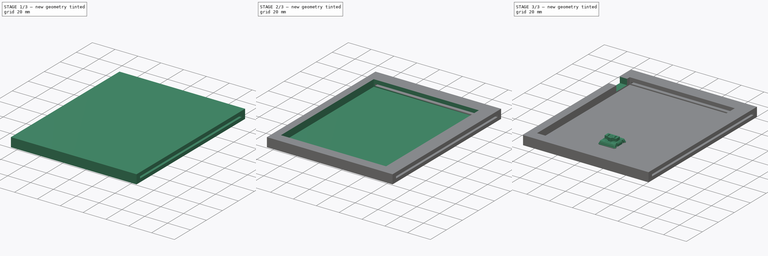
[diagram: build sequence overview — one tinted view per stage of 3, left to right]
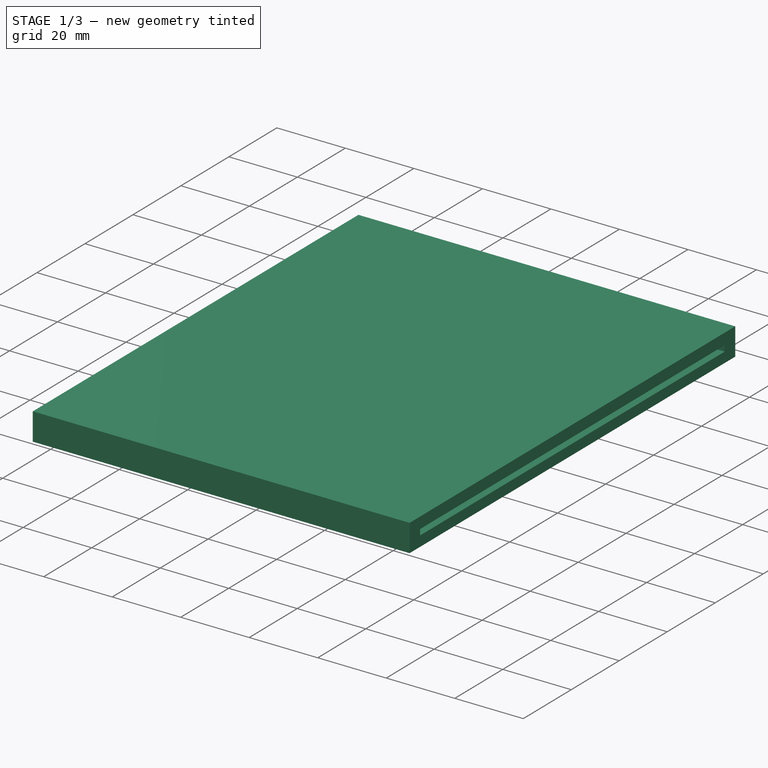
[diagram: stage 1 of 3 — iso view after this stage's code; geometry added in this stage tinted green]
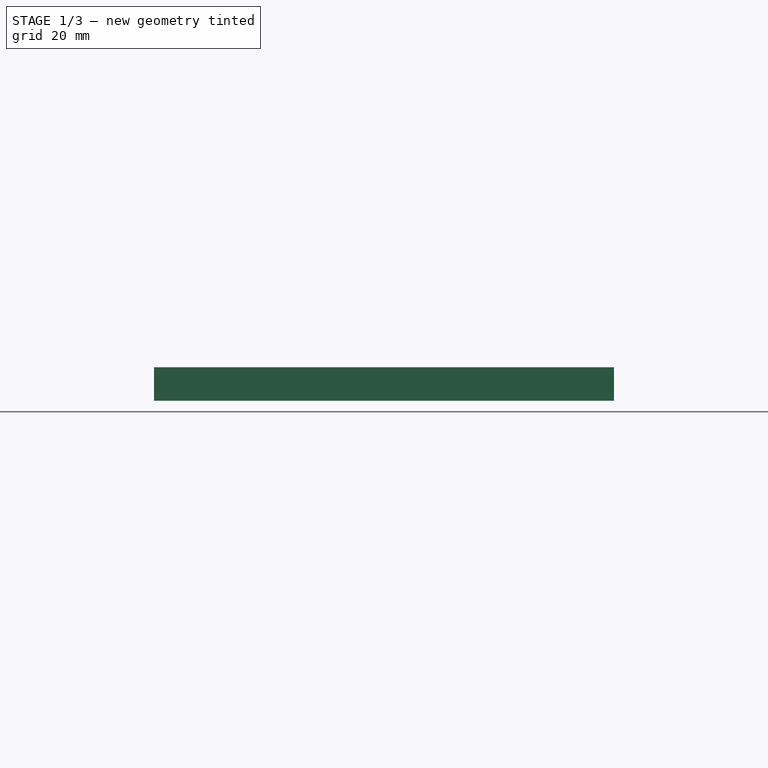
[diagram: stage 1 of 3 — front view after this stage's code; geometry added in this stage tinted green]
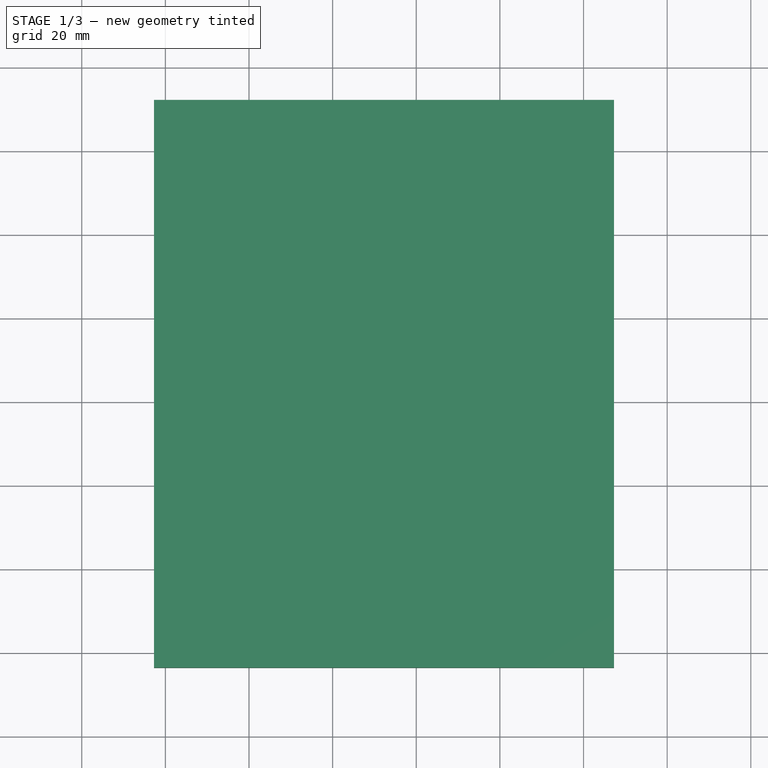
[diagram: stage 1 of 3 — top view after this stage's code; geometry added in this stage tinted green]
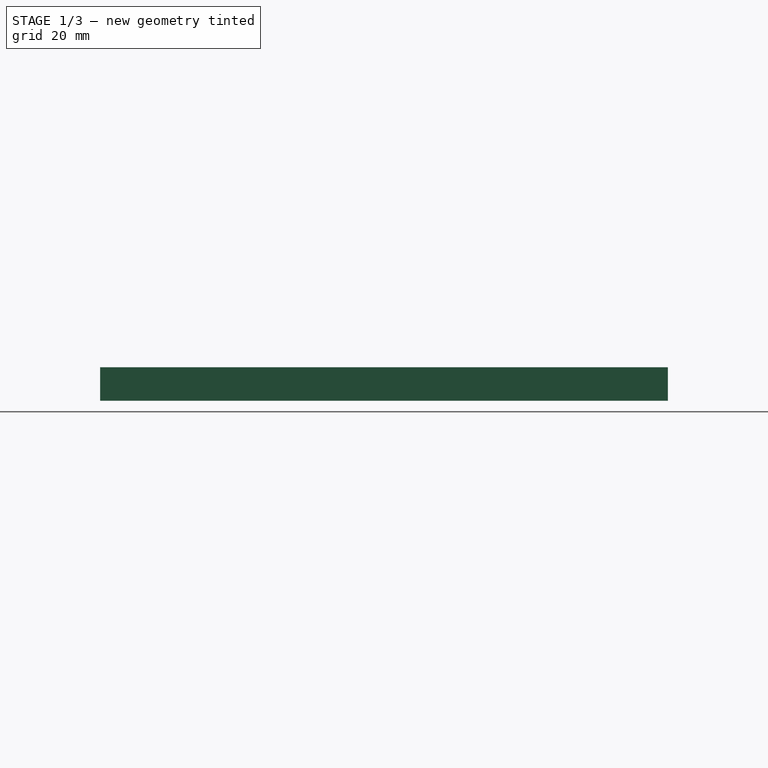
[diagram: stage 1 of 3 — right view after this stage's code; geometry added in this stage tinted green]
FCSTD DOCUMENT  (FreeCAD 0.19R24366 (Git))
Label: Macropad-Body
License: All rights reserved
LicenseURL: http://en.wikipedia.org/wiki/All_rights_reserved
objects: App::Link×24, Part::Feature×10, Sketcher::SketchObject×5, App::Part×4, PartDesign::Pocket×3, PartDesign::CoordinateSystem×1, Part::Compound2×1, PartDesign::Pad×1, PartDesign::Body×1
note: 25 computed .brp shape members not serialized (recipe doc carries the construction recipe); baked Part::Feature solids carry a one-line shape summary decoded from their .brp

FEATURE [App::Link] SW14_Document_2853d20ba206_ln_  label="SW18_Document_3f2459f904bc"
  LinkPlacement = pos=(108.338,-109.212,2) rot=(0,0,1;0rad)
  LinkedObject = -> Compound
  Placement = pos=(108.338,-109.212,2) rot=(0,0,1;0rad)
FEATURE [App::Link] SW14_Document_2853d20ba206_ln_001  label="SW20_Document_5184012de5fe"
  LinkPlacement = pos=(108.338,-145.612,2) rot=(0,0,1;0rad)
  LinkedObject = -> Compound
  Placement = pos=(108.338,-145.612,2) rot=(0,0,1;0rad)
FEATURE [App::Link] SW14_Document_2853d20ba206_ln_002  label="SW24_Document_49687321c8c3"
  LinkPlacement = pos=(126.538,-127.412,2) rot=(0,0,1;0rad)
  LinkedObject = -> Compound
  Placement = pos=(126.538,-127.412,2) rot=(0,0,1;0rad)
FEATURE [App::Link] SW14_Document_2853d20ba206_ln_003  label="SW5_Document_e620e6cf32ca"
  LinkPlacement = pos=(53.738,-145.612,2) rot=(0,0,1;0rad)
  LinkedObject = -> Compound
  Placement = pos=(53.738,-145.612,2) rot=(0,0,1;0rad)
FEATURE [App::Link] SW14_Document_2853d20ba206_ln_004  label="SW16_Document_e62f87efac60"
  LinkPlacement = pos=(108.338,-72.812,2) rot=(0,0,1;0rad)
  LinkedObject = -> Compound
  Placement = pos=(108.338,-72.812,2) rot=(0,0,1;0rad)
FEATURE [App::Link] SW14_Document_2853d20ba206_ln_005  label="SW25_Document_6bb74f2d1ac8"
  LinkPlacement = pos=(126.538,-145.612,2) rot=(0,0,1;0rad)
  LinkedObject = -> Compound
  Placement = pos=(126.538,-145.612,2) rot=(0,0,1;0rad)
FEATURE [App::Link] SW14_Document_2853d20ba206_ln_006  label="SW13_Document_20a67ae5f37a"
  LinkPlacement = pos=(90.138,-109.212,2) rot=(0,0,1;0rad)
  LinkedObject = -> Compound
  Placement = pos=(90.138,-109.212,2) rot=(0,0,1;0rad)
FEATURE [App::Link] SW14_Document_2853d20ba206_ln_007  label="SW9_Document_a8bebd084112"
  LinkPlacement = pos=(71.938,-127.412,2) rot=(0,0,1;0rad)
  LinkedObject = -> Compound
  Placement = pos=(71.938,-127.412,2) rot=(0,0,1;0rad)
FEATURE [App::Link] SW14_Document_2853d20ba206_ln_008  label="SW19_Document_7b6202ae578f"
  LinkPlacement = pos=(108.338,-127.412,2) rot=(0,0,1;0rad)
  LinkedObject = -> Compound
  Placement = pos=(108.338,-127.412,2) rot=(0,0,1;0rad)
FEATURE [App::Link] SW14_Document_2853d20ba206_ln_009  label="SW10_Document_03b2c68a05de"
  LinkPlacement = pos=(71.938,-145.612,2) rot=(0,0,1;0rad)
  LinkedObject = -> Compound
  Placement = pos=(71.938,-145.612,2) rot=(0,0,1;0rad)
FEATURE [App::Link] SW14_Document_2853d20ba206_ln_010  label="SW6_Document_54752b49123a"
  LinkPlacement = pos=(71.938,-72.812,2) rot=(0,0,1;0rad)
  LinkedObject = -> Compound
  Placement = pos=(71.938,-72.812,2) rot=(0,0,1;0rad)
FEATURE [App::Link] SW14_Document_2853d20ba206_ln_011  label="SW15_Document_e8960decdecc"
  LinkPlacement = pos=(90.138,-145.612,2) rot=(0,0,1;0rad)
  LinkedObject = -> Compound
  Placement = pos=(90.138,-145.612,2) rot=(0,0,1;0rad)
FEATURE [App::Link] SW14_Document_2853d20ba206_ln_012  label="SW7_Document_2b6421fbf4d7"
  LinkPlacement = pos=(71.938,-91.012,2) rot=(0,0,1;0rad)
  LinkedObject = -> Compound
  Placement = pos=(71.938,-91.012,2) rot=(0,0,1;0rad)
FEATURE [App::Link] SW14_Document_2853d20ba206_ln_013  label="SW11_Document_0afd5a4c94a8"
  LinkPlacement = pos=(90.138,-72.812,2) rot=(0,0,1;0rad)
  LinkedObject = -> Compound
  Placement = pos=(90.138,-72.812,2) rot=(0,0,1;0rad)
FEATURE [App::Link] SW14_Document_2853d20ba206_ln_014  label="SW3_Document_b792f1493e33"
  LinkPlacement = pos=(53.738,-109.212,2) rot=(0,0,1;0rad)
  LinkedObject = -> Compound
  Placement = pos=(53.738,-109.212,2) rot=(0,0,1;0rad)
FEATURE [App::Link] SW14_Document_2853d20ba206_ln_015  label="SW8_Document_85e8c02a8ba8"
  LinkPlacement = pos=(71.938,-109.212,2) rot=(0,0,1;0rad)
  LinkedObject = -> Compound
  Placement = pos=(71.938,-109.212,2) rot=(0,0,1;0rad)
FEATURE [App::Link] SW14_Document_2853d20ba206_ln_016  label="SW21_Document_d1286374ccfa"
  LinkPlacement = pos=(126.538,-72.812,2) rot=(0,0,1;0rad)
  LinkedObject = -> Compound
  Placement = pos=(126.538,-72.812,2) rot=(0,0,1;0rad)
FEATURE [App::Link] SW14_Document_2853d20ba206_ln_017  label="SW22_Document_9cc95cef6f41"
  LinkPlacement = pos=(126.538,-91.012,2) rot=(0,0,1;0rad)
  LinkedObject = -> Compound
  Placement = pos=(126.538,-91.012,2) rot=(0,0,1;0rad)
FEATURE [App::Link] SW14_Document_2853d20ba206_ln_018  label="SW2_Document_9691d7f0c1f2"
  LinkPlacement = pos=(53.738,-91.012,2) rot=(0,0,1;0rad)
  LinkedObject = -> Compound
  Placement = pos=(53.738,-91.012,2) rot=(0,0,1;0rad)
FEATURE [App::Link] SW14_Document_2853d20ba206_ln_019  label="SW23_Document_a87c25bd77f8"
  LinkPlacement = pos=(126.538,-109.212,2) rot=(0,0,1;0rad)
  LinkedObject = -> Compound
  Placement = pos=(126.538,-109.212,2) rot=(0,0,1;0rad)
FEATURE [App::Link] SW14_Document_2853d20ba206_ln_020  label="SW12_Document_93c31ae8dfb6"
  LinkPlacement = pos=(90.138,-91.012,2) rot=(0,0,1;0rad)
  LinkedObject = -> Compound
  Placement = pos=(90.138,-91.012,2) rot=(0,0,1;0rad)
FEATURE [App::Link] SW14_Document_2853d20ba206_ln_021  label="SW17_Document_374a33b9ad63"
  LinkPlacement = pos=(108.338,-91.012,2) rot=(0,0,1;0rad)
  LinkedObject = -> Compound
  Placement = pos=(108.338,-91.012,2) rot=(0,0,1;0rad)
FEATURE [App::Link] SW14_Document_2853d20ba206_ln_022  label="SW4_Document_aa552340458d"
  LinkPlacement = pos=(53.738,-127.412,2) rot=(0,0,1;0rad)
  LinkedObject = -> Compound
  Placement = pos=(53.738,-127.412,2) rot=(0,0,1;0rad)
FEATURE [App::Link] SW14_Document_2853d20ba206_ln_023  label="SW1_Document_5cf0fb6ca8e3"
  LinkPlacement = pos=(53.738,-72.812,2) rot=(0,0,1;0rad)
  LinkedObject = -> Compound
  Placement = pos=(53.738,-72.812,2) rot=(0,0,1;0rad)
FEATURE [App::Part] Top_223f
  Group = -> [Solid004,Solid,Solid003,Solid001,Solid002,Solid007,Solid008,Solid005,Solid006,Compound,SW14_Document_2853d20ba206_ln_,SW14_Document_2853d20ba206_ln_001,SW14_Document_2853d20ba206_ln_002,SW14_Document_2853d20ba206_ln_003,SW14_Document_2853d20ba206_ln_004,SW14_Document_2853d20ba206_ln_005,SW14_Document_2853d20ba206_ln_006,SW14_Document_2853d20ba206_ln_007,SW14_Document_2853d20ba206_ln_008,+15 more]
  Origin = -> Origin003
FEATURE [App::Part] Step_Models_223f
  Group = -> [Top_223f]
  Origin = -> Origin002
FEATURE [App::Part] Board_223f  label="Macropad"
  Group = -> [Board_Geoms_223f,Step_Models_223f]
  Origin = -> Origin001
  Placement = pos=(0,0,4.5) rot=(0,0,1;0rad)
FEATURE [Sketcher::SketchObject] Sketch
  FullyConstrained = false
  MapMode = 5
  Support = -> [XY_Plane004]
  sketch-geometry (4):
    g0: LineSegment StartX=37.2829 StartY=-27.7881 StartZ=0 EndX=147.283 EndY=-27.7881 EndZ=0
    g1: LineSegment StartX=147.283 StartY=-27.7881 StartZ=0 EndX=147.283 EndY=-163.538 EndZ=0
    g2: LineSegment StartX=147.283 StartY=-163.538 StartZ=0 EndX=37.2829 EndY=-163.538 EndZ=0
    g3: LineSegment StartX=37.2829 StartY=-163.538 StartZ=0 EndX=37.2829 EndY=-27.7881 EndZ=0
  constraints (10):
    c: Coincident(g0,g1)
    c: Coincident(g1,g2)
    c: Coincident(g2,g3)
    c: Coincident(g3,g0)
    c: Horizontal(g0)
    c: Horizontal(g2)
    c: Vertical(g1)
    c: Vertical(g3)
    c: DistanceX(g0,g0) = 110
    c: DistanceY(g1,g1) = 135.75
FEATURE [PartDesign::Pad] Pad
  Direction = (1,1,1)
  Length = 8
  Length2 = 100
  Profile = -> Sketch
  Type = 0
FEATURE [Sketcher::SketchObject] Sketch001
  ExternalGeometry = -> [Pad]
  FullyConstrained = true
  MapMode = 5
  Placement = pos=(147.283,0,0) rot=(0.57735,0.57735,0.57735;2.0944rad)
  Support = -> [Pad]
  sketch-geometry (4):
    g0: LineSegment StartX=-159.163 StartY=4.7 StartZ=0 EndX=-32.1631 EndY=4.7 EndZ=0
    g1: LineSegment StartX=-32.1631 StartY=4.7 StartZ=0 EndX=-32.1631 EndY=3 EndZ=0
    g2: LineSegment StartX=-32.1631 StartY=3 StartZ=0 EndX=-159.163 EndY=3 EndZ=0
    g3: LineSegment StartX=-159.163 StartY=3 StartZ=0 EndX=-159.163 EndY=4.7 EndZ=0
  constraints (12):
    c: Coincident(g0,g1)
    c: Coincident(g1,g2)
    c: Coincident(g2,g3)
    c: Coincident(g3,g0)
    c: Horizontal(g0)
    c: Horizontal(g2)
    c: Vertical(g1)
    c: Vertical(g3)
    c: DistanceY(g1,g1) = 1.7
    c: DistanceY(g-5,g1) = 3
    c: DistanceX(g0,g0) = 127
    c: DistanceX(g1,g-5) = 4.375
FEATURE [PartDesign::Pocket] Pocket
  BaseFeature = -> Pad
  Length = 102.5
  Length2 = 100
  Profile = -> Sketch001
  Type = 0
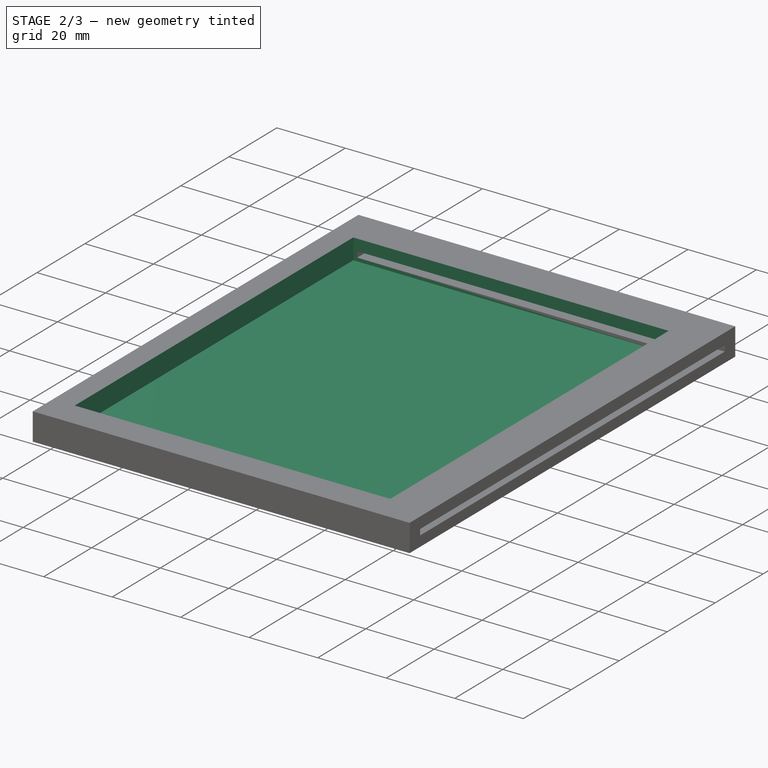
[diagram: stage 2 of 3 — iso view after this stage's code; geometry added in this stage tinted green]
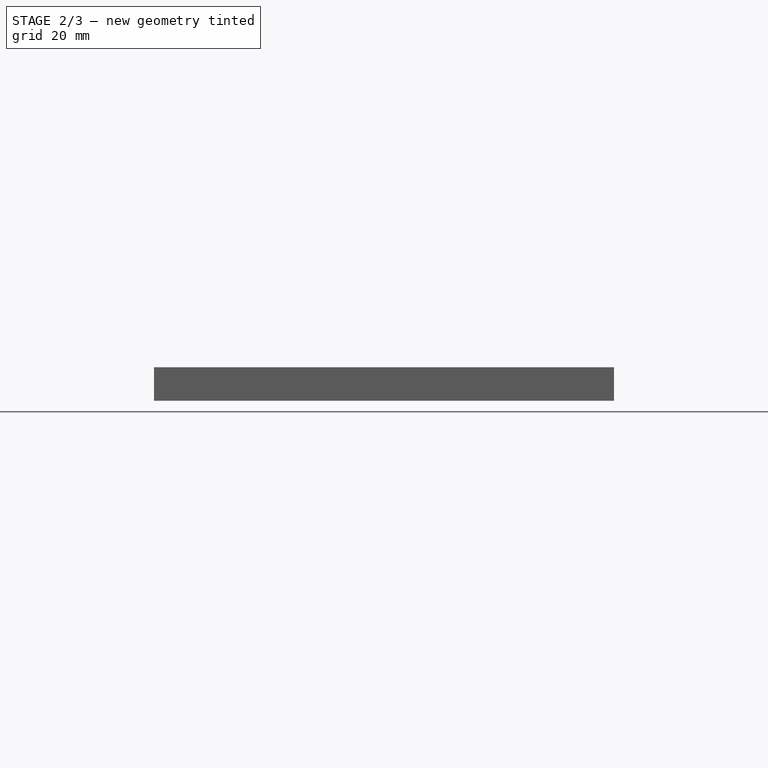
[diagram: stage 2 of 3 — front view after this stage's code; geometry added in this stage tinted green]
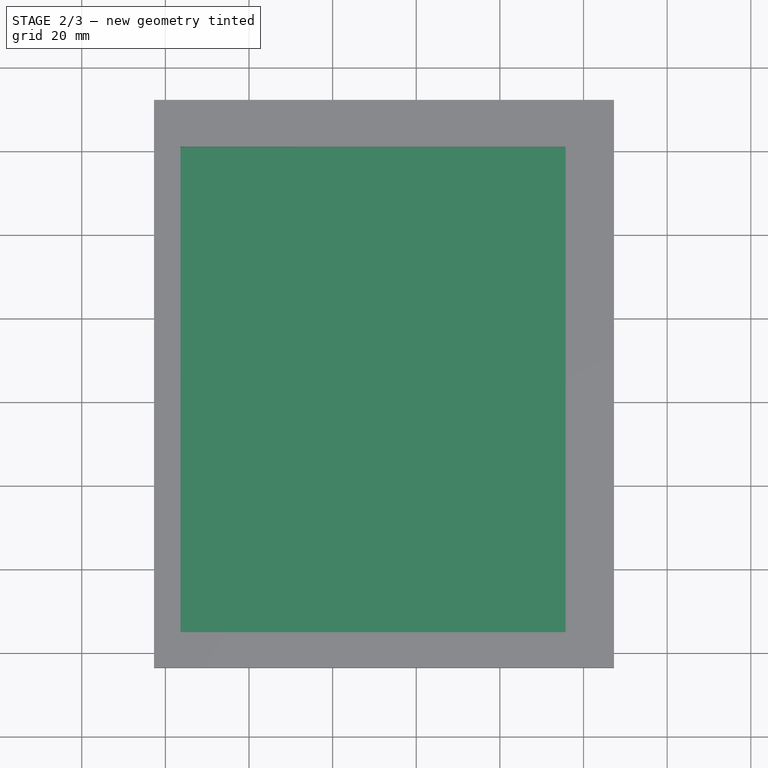
[diagram: stage 2 of 3 — top view after this stage's code; geometry added in this stage tinted green]
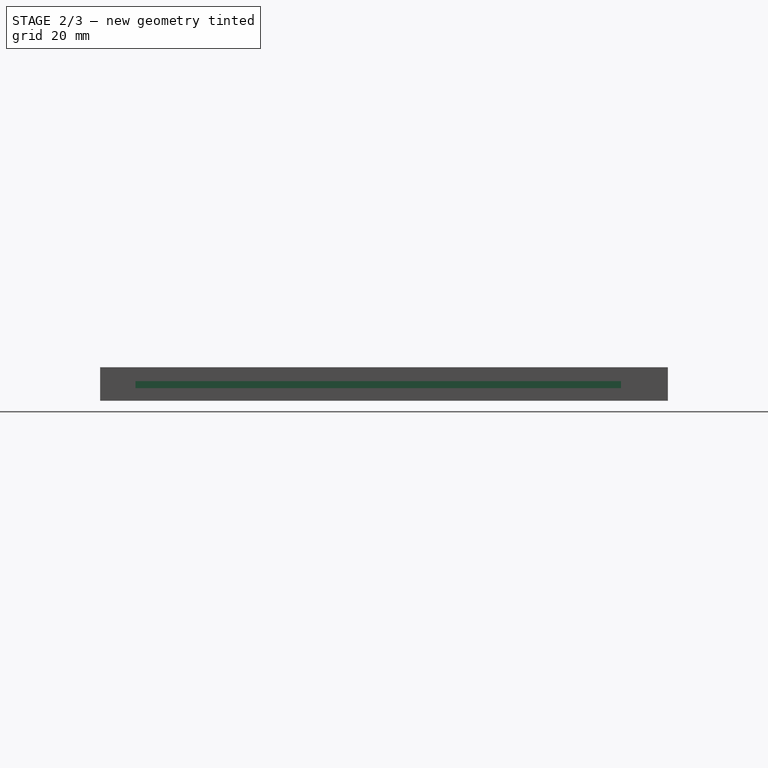
[diagram: stage 2 of 3 — right view after this stage's code; geometry added in this stage tinted green]
FEATURE [Sketcher::SketchObject] Sketch002
  FullyConstrained = false
  MapMode = 5
  Placement = pos=(0,0,8) rot=(0,0,1;0rad)
  Support = -> [Pocket]
  sketch-geometry (4):
    g0: LineSegment StartX=43.6185 StartY=-39.0029 StartZ=0 EndX=135.709 EndY=-39.0029 EndZ=0
    g1: LineSegment StartX=135.709 StartY=-39.0029 StartZ=0 EndX=135.709 EndY=-155.08 EndZ=0
    g2: LineSegment StartX=135.709 StartY=-155.08 StartZ=0 EndX=43.6185 EndY=-155.08 EndZ=0
    g3: LineSegment StartX=43.6185 StartY=-155.08 StartZ=0 EndX=43.6185 EndY=-39.0029 EndZ=0
  constraints (8):
    c: Coincident(g0,g1)
    c: Coincident(g1,g2)
    c: Coincident(g2,g3)
    c: Coincident(g3,g0)
    c: Horizontal(g0)
    c: Horizontal(g2)
    c: Vertical(g1)
    c: Vertical(g3)
FEATURE [PartDesign::Pocket] Pocket001
  BaseFeature = -> Pocket
  Length = 6
  Length2 = 100
  Profile = -> Sketch002
  Type = 0
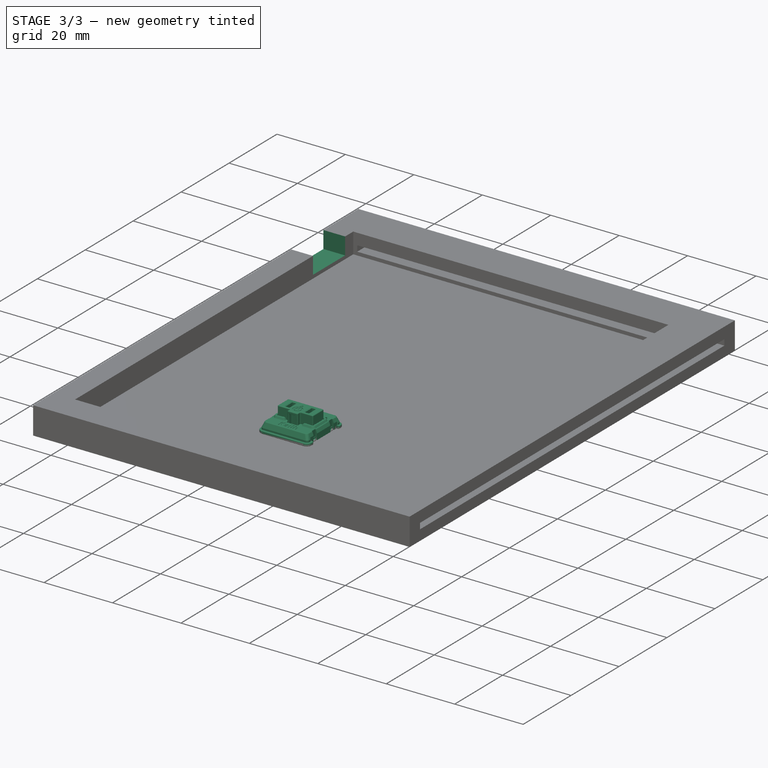
[diagram: stage 3 of 3 — iso view after this stage's code; geometry added in this stage tinted green]
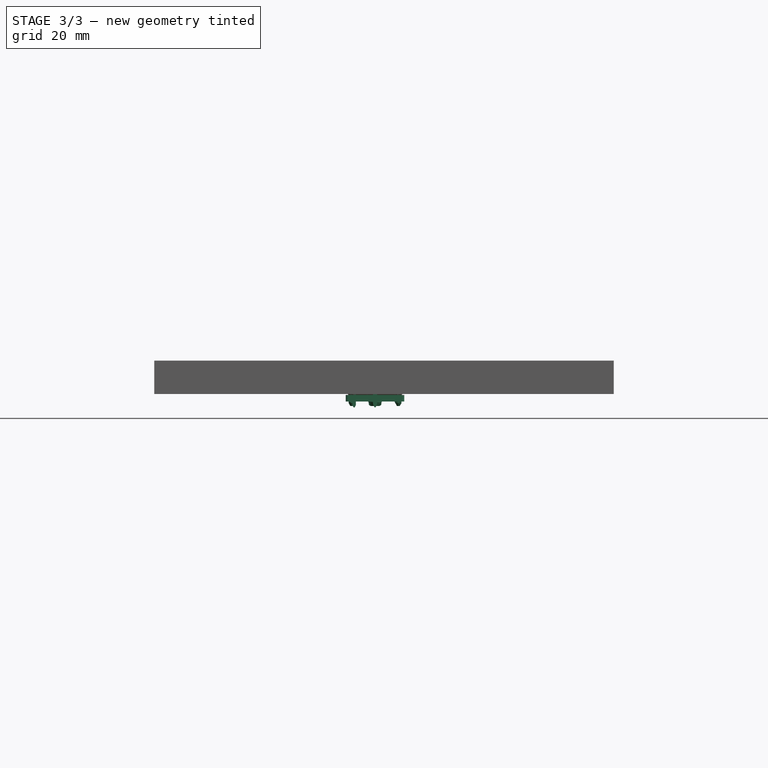
[diagram: stage 3 of 3 — front view after this stage's code; geometry added in this stage tinted green]
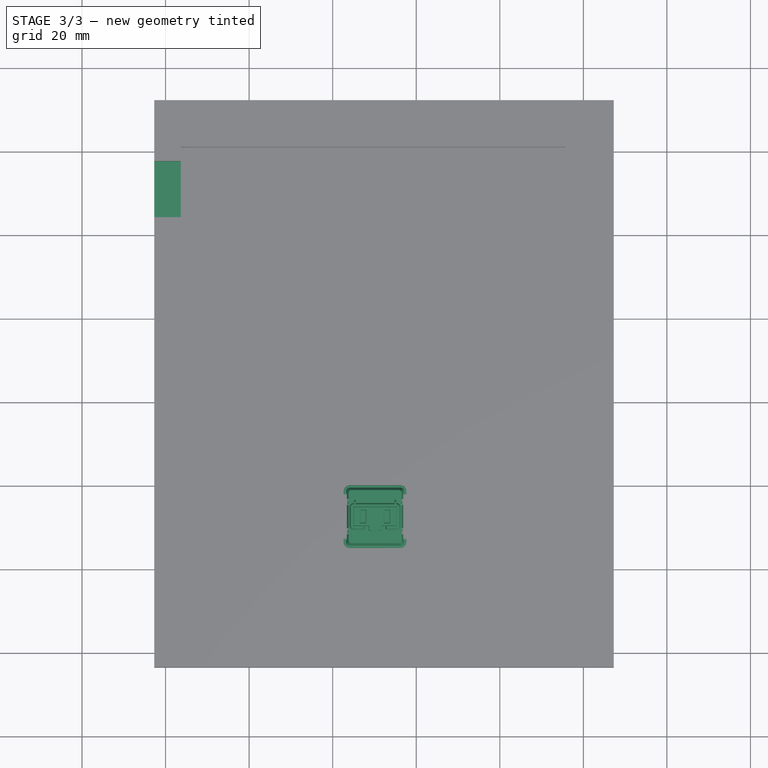
[diagram: stage 3 of 3 — top view after this stage's code; geometry added in this stage tinted green]
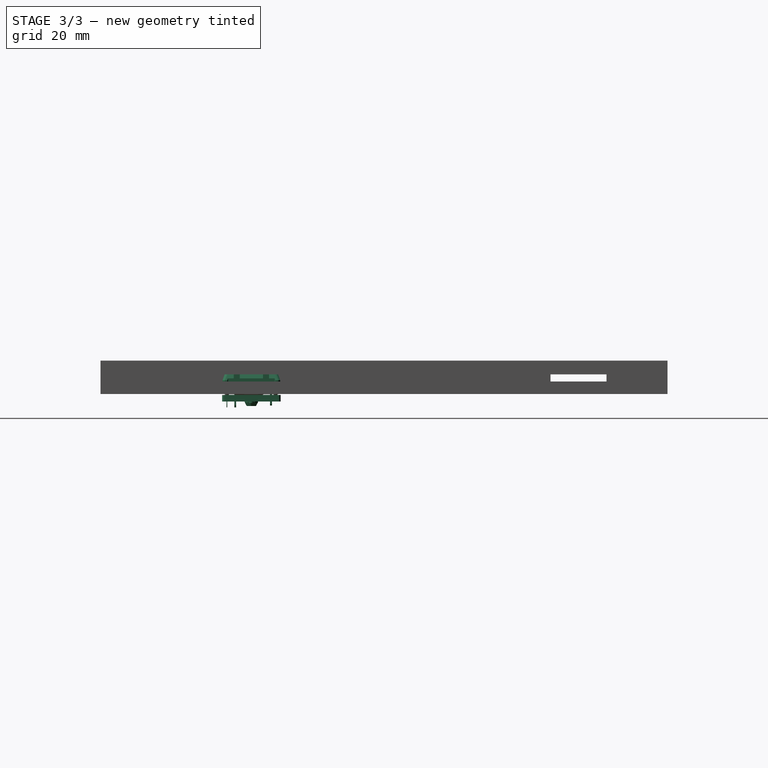
[diagram: stage 3 of 3 — right view after this stage's code; geometry added in this stage tinted green]
FEATURE [PartDesign::CoordinateSystem] Local_CS_223f
  AttacherType = Attacher::AttachEngine3D
FEATURE [Part::Feature] Pcb_223f
  shape: bbox 95 x 125.8 x 1.6 mm, 213 faces (baked)
FEATURE [Sketcher::SketchObject] PCB_Sketch_223f
  FullyConstrained = false
  sketch-geometry (8):
    g0: LineSegment StartX=42.938 StartY=-37.462 StartZ=0 EndX=42.938 EndY=-153.712 EndZ=0
    g1: LineSegment StartX=47.688 StartY=-32.712 StartZ=0 EndX=133.188 EndY=-32.712 EndZ=0
    g2: LineSegment StartX=47.688 StartY=-158.462 StartZ=0 EndX=133.188 EndY=-158.462 EndZ=0
    g3: LineSegment StartX=137.938 StartY=-153.712 StartZ=0 EndX=137.938 EndY=-37.462 EndZ=0
    g4: ArcOfCircle CenterX=47.688 CenterY=-153.712 CenterZ=0 NormalX=0 NormalY=0 NormalZ=-1 AngleXU=-1.5708 Radius=4.75 StartAngle=0 EndAngle=1.5708
    g5: ArcOfCircle CenterX=133.188 CenterY=-37.462 CenterZ=0 NormalX=0 NormalY=0 NormalZ=-1 AngleXU=1.5708 Radius=4.75 StartAngle=0 EndAngle=1.5708
    g6: ArcOfCircle CenterX=133.188 CenterY=-153.712 CenterZ=0 NormalX=0 NormalY=0 NormalZ=-1 AngleXU=-3.14159 Radius=4.75 StartAngle=0 EndAngle=1.5708
    g7: ArcOfCircle CenterX=47.688 CenterY=-37.462 CenterZ=0 NormalX=0 NormalY=0 NormalZ=-1 AngleXU=1.51401e-07 Radius=4.75 StartAngle=0 EndAngle=1.5708
  constraints (8):
    c: Coincident(g0,g4)
    c: Coincident(g0,g7)
    c: Coincident(g2,g4)
    c: Coincident(g1,g7)
    c: Coincident(g2,g6)
    c: Coincident(g1,g5)
    c: Coincident(g3,g6)
    c: Coincident(g3,g5)
FEATURE [App::Part] Board_Geoms_223f
  Group = -> [Local_CS_223f,Pcb_223f,PCB_Sketch_223f]
  Origin = -> Origin
FEATURE [Part::Feature] Solid
  shape: bbox 14.5 x 13.82 x 5.355 mm, 196 faces (baked)
FEATURE [Part::Feature] Solid001
  shape: bbox 15 x 15 x 5.651 mm, 199 faces (baked)
FEATURE [Part::Feature] Solid002
  shape: bbox 1.27 x 0.5 x 3.572 mm, 13 faces (baked)
FEATURE [Part::Feature] Solid003
  shape: bbox 1.27 x 0.5 x 3.572 mm, 13 faces (baked)
FEATURE [Part::Feature] Solid004
  shape: bbox 4 x 2.4 x 3 mm, 10 faces (baked)
FEATURE [Part::Feature] Solid005
  shape: bbox 14 x 14 x 1.6 mm, 24 faces (baked)
FEATURE [Part::Feature] Solid006
  shape: bbox 0.8112 x 0.4113 x 5.597 mm, 8 faces (baked)
FEATURE [Part::Feature] Solid007
  shape: bbox 0.9937 x 0.1824 x 5.597 mm, 10 faces (baked)
FEATURE [Part::Feature] Solid008
  shape: bbox 10.5 x 5.748 x 5.085 mm, 82 faces (baked)
FEATURE [Part::Compound2] Compound  label="SW14_Document_2853d20ba206"
  Links = -> [Solid,Solid001,Solid002,Solid003,Solid004,Solid005,Solid006,Solid007,Solid008]
  Placement = pos=(90.138,-127.412,2) rot=(0,0,1;0rad)
FEATURE [Sketcher::SketchObject] Sketch003
  FullyConstrained = false
  MapMode = 5
  Placement = pos=(0,0,8) rot=(0,0,1;0rad)
  Support = -> [Pocket001]
  sketch-geometry (4):
    g0: LineSegment StartX=36.4119 StartY=-42.3919 StartZ=0 EndX=45.4272 EndY=-42.3919 EndZ=0
    g1: LineSegment StartX=45.4272 StartY=-42.3919 StartZ=0 EndX=45.4272 EndY=-55.8075 EndZ=0
    g2: LineSegment StartX=45.4272 StartY=-55.8075 StartZ=0 EndX=36.4119 EndY=-55.8075 EndZ=0
    g3: LineSegment StartX=36.4119 StartY=-55.8075 StartZ=0 EndX=36.4119 EndY=-42.3919 EndZ=0
  constraints (8):
    c: Coincident(g0,g1)
    c: Coincident(g1,g2)
    c: Coincident(g2,g3)
    c: Coincident(g3,g0)
    c: Horizontal(g0)
    c: Horizontal(g2)
    c: Vertical(g1)
    c: Vertical(g3)
FEATURE [PartDesign::Pocket] Pocket002
  BaseFeature = -> Pocket001
  Length = 5
  Length2 = 100
  Profile = -> Sketch003
  Type = 0
FEATURE [PartDesign::Body] Body
  Group = -> [Sketch,Pad,Sketch001,Pocket,Sketch002,Pocket001,Sketch003,Pocket002]
  Origin = -> Origin004
  Tip = -> Pocket002
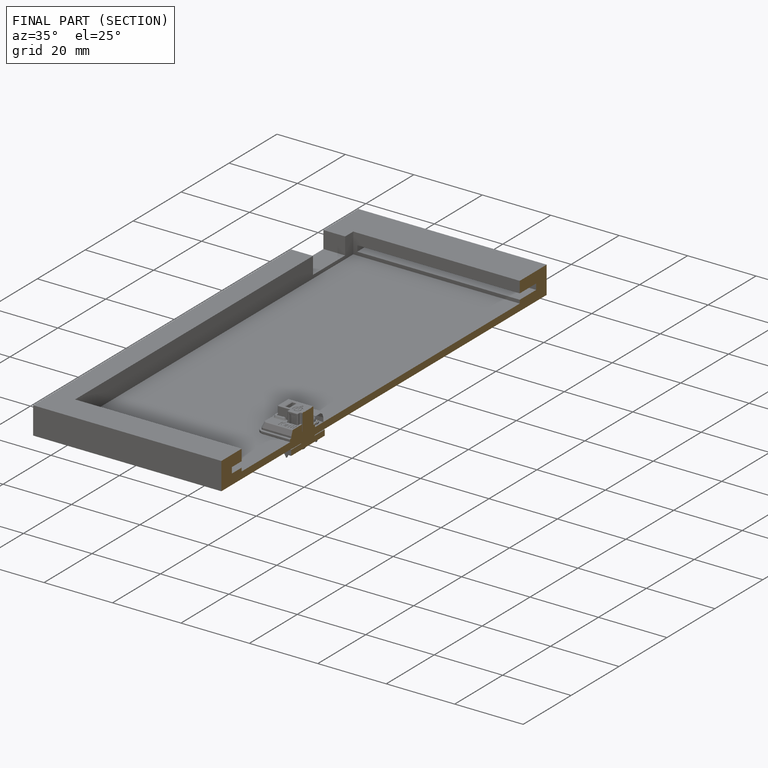
[diagram: finished part — half-section view (interior)]
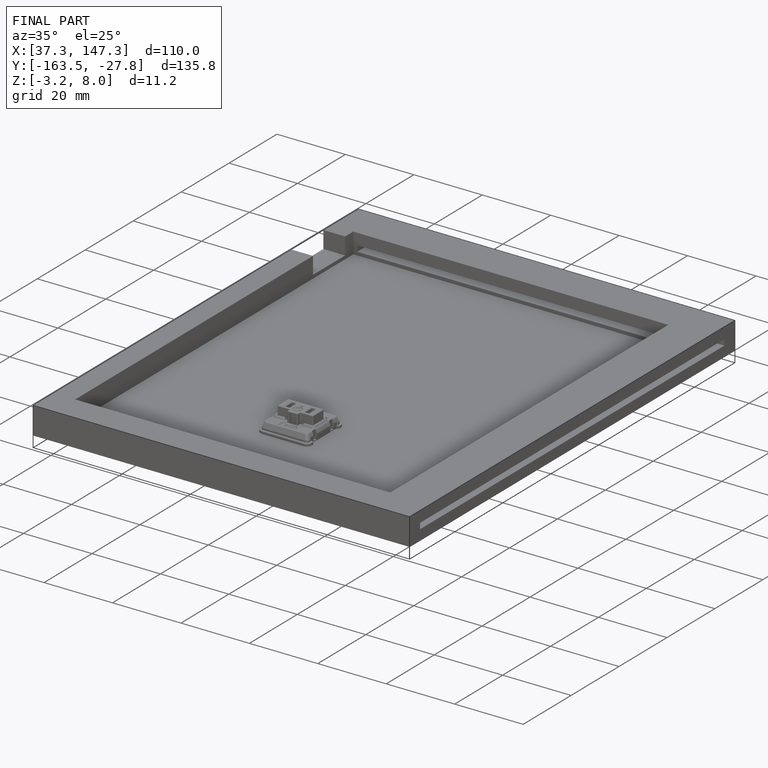
[diagram: finished part — iso view with bounding-box wireframe]
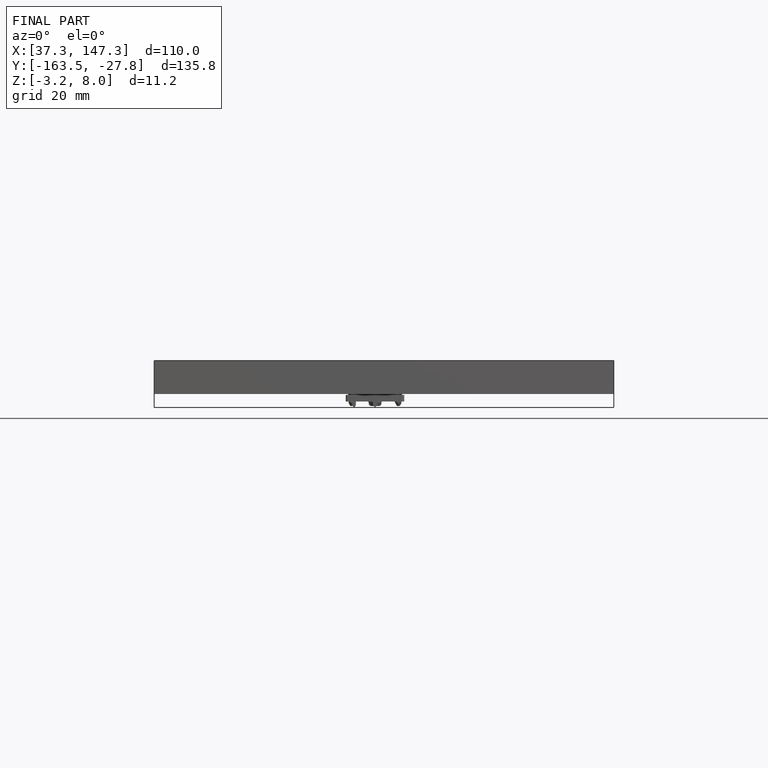
[diagram: finished part — front view with bounding-box wireframe]
